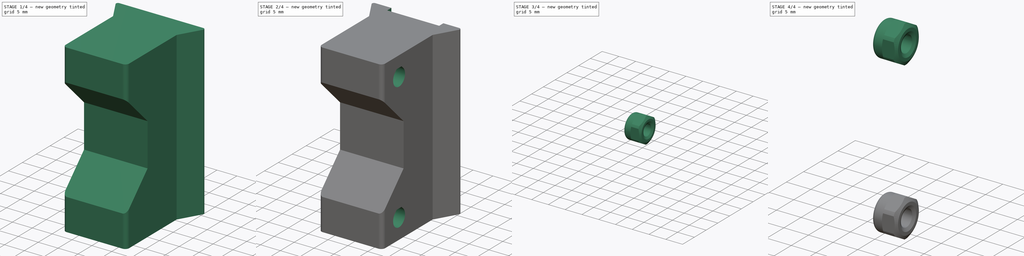
[diagram: build sequence overview — one tinted view per stage of 4, left to right]
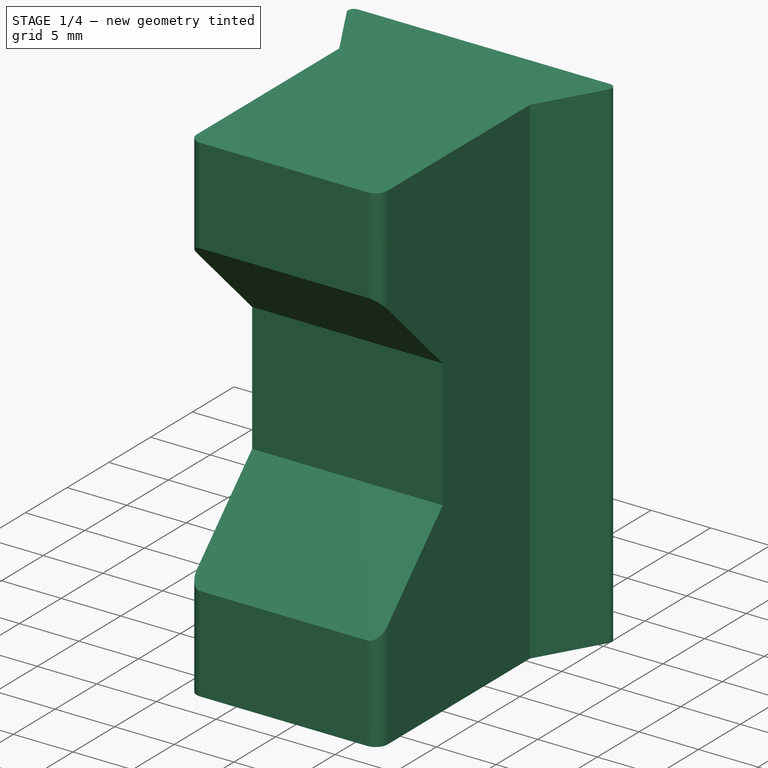
[diagram: stage 1 of 4 — iso view after this stage's code; geometry added in this stage tinted green]
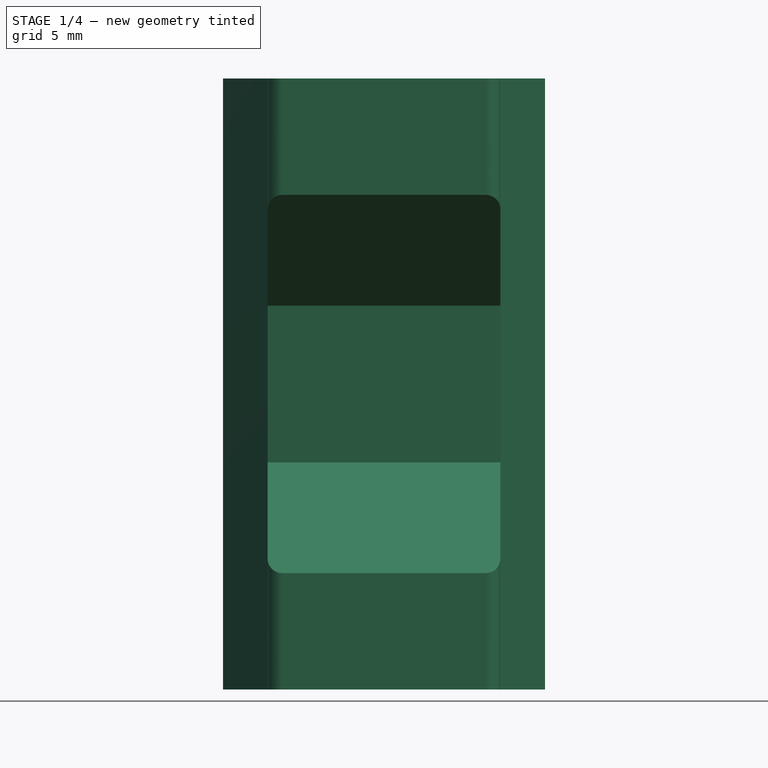
[diagram: stage 1 of 4 — front view after this stage's code; geometry added in this stage tinted green]
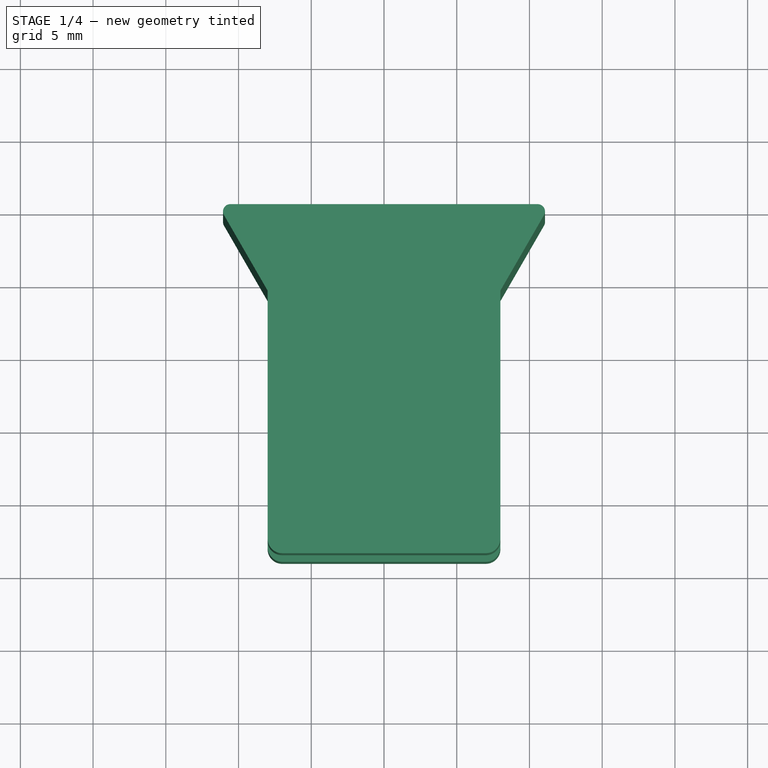
[diagram: stage 1 of 4 — top view after this stage's code; geometry added in this stage tinted green]
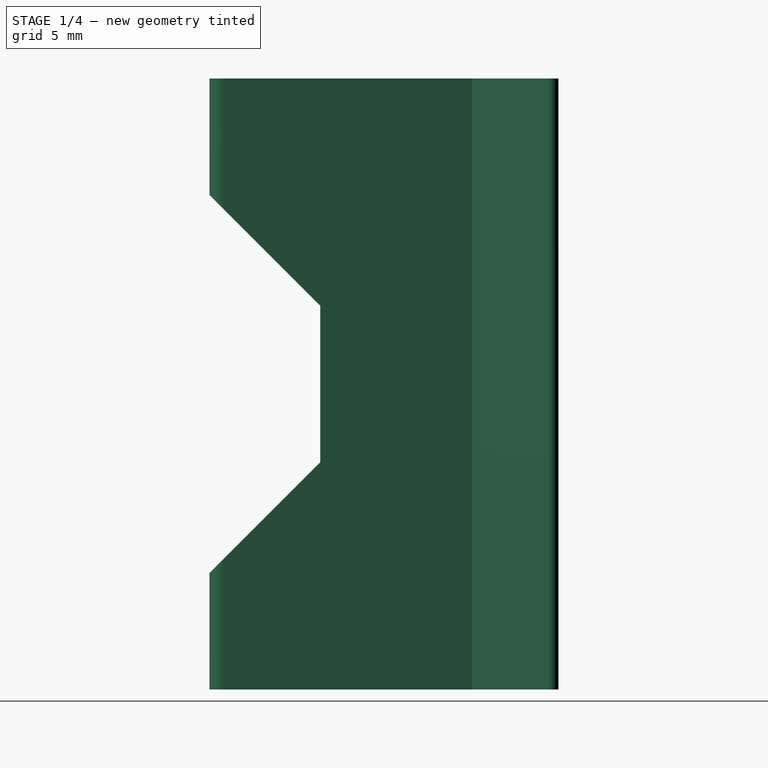
[diagram: stage 1 of 4 — right view after this stage's code; geometry added in this stage tinted green]
FCSTD DOCUMENT  (FreeCAD 0.20R29177 +426 (Git))
Label: BreakawayHeadBase
License: All rights reserved
LicenseURL: http://en.wikipedia.org/wiki/All_rights_reserved
objects: Sketcher::SketchObject×5, App::DocumentObjectGroup×4, PartDesign::Pocket×4, Part::FeaturePython×4, PartDesign::CoordinateSystem×2, App::Link×2, App::FeaturePython×1, PartDesign::Pad×1, PartDesign::Body×1, App::Part×1
note: 22 computed .brp shape members not serialized (recipe doc carries the construction recipe); baked Part::Feature solids carry a one-line shape summary decoded from their .brp
EXTERNAL_REF file=EndStopTip.FCStd obj=Sketch003
EXTERNAL_REF file=EndStopTip.FCStd obj=Sketch
EXTERNAL_REF file=BreakawayMagnet.FCStd obj=LCS_Origin
EXTERNAL_REF file=BreakawayMagnet.FCStd obj=Assembly

FEATURE [App::Part] Assembly
  AssemblyType = Part::Link
  Group = -> [LCS_Origin,Variables,Constraints,Configurations,Body,Screw]
  Origin = -> Origin
  Type = Assembly
---- part EndStopTip.FCStd = doc fcstd_322e3f0e3d58 ----
FCSTD DOCUMENT  (FreeCAD 0.20R29177 +426 (Git))
Label: EndStopTip
License: All rights reserved
LicenseURL: http://en.wikipedia.org/wiki/All_rights_reserved
objects: Sketcher::SketchObject×4, App::DocumentObjectGroup×2, PartDesign::Pad×2, PartDesign::Hole×2, PartDesign::Pocket×2, PartDesign::CoordinateSystem×1, App::FeaturePython×1, PartDesign::Body×1, App::Part×1
note: 18 computed .brp shape members not serialized (recipe doc carries the construction recipe); baked Part::Feature solids carry a one-line shape summary decoded from their .brp

FEATURE [PartDesign::CoordinateSystem] LCS_Origin
  AttacherType = Attacher::AttachEngine3D
  MapMode = 2
  Support = -> [X_Axis]
FEATURE [App::FeaturePython] Variables  # WARN: FeaturePython — macro-defined, semantics opaque (R4)
  BaseHeight = 5
  Type = App::PropertyContainer
FEATURE [App::DocumentObjectGroup] Constraints
FEATURE [App::DocumentObjectGroup] Configurations
FEATURE [Sketcher::SketchObject] Sketch
  AttachmentOffset = pos=(0,0,5) rot=(0,0,1;0rad)
  FullyConstrained = true
  MapMode = 5
  Placement = pos=(0,0,5) rot=(0,0,1;0rad)
  Support = -> [XY_Plane001]
  expr: .AttachmentOffset.Base.z = <<Variables>>.BaseHeight
  sketch-geometry (5):
    g0: LineSegment StartX=-20 StartY=-21 StartZ=0 EndX=-20 EndY=21 EndZ=0
    g1: LineSegment StartX=-20 StartY=21 StartZ=0 EndX=20 EndY=21 EndZ=0
    g2: LineSegment StartX=20 StartY=21 StartZ=0 EndX=20 EndY=-21 EndZ=0
    g3: LineSegment StartX=20 StartY=-21 StartZ=0 EndX=-20 EndY=-21 EndZ=0
    g4: GeomPoint X=0 Y=0 Z=0
  constraints (12):
    c: Coincident(g0,g1)
    c: Coincident(g1,g2)
    c: Coincident(g2,g3)
    c: Coincident(g3,g0)
    c: Horizontal(g1)
    c: Horizontal(g3)
    c: Vertical(g0)
    c: Vertical(g2)
    c: Symmetric(g1,g0,g4)
    c: Coincident(g4,g-1)
    c: DistanceX(g3,g3) = 40  'Width'
    c: DistanceY(g2,g2) = 42  'Height'
FEATURE [PartDesign::Pad] Pad
  Direction = (0,0,1)
  Length = 5
  Length2 = 10
  Profile = -> Sketch
  ReferenceAxis = -> Sketch [N_Axis]
  Reversed = true
  Type = 0
  expr: Length = <<Variables>>.BaseHeight
FEATURE [Sketcher::SketchObject] Sketch001
  AttachmentOffset = pos=(0,0,5) rot=(0,0,1;0rad)
  FullyConstrained = true
  MapMode = 5
  Placement = pos=(0,0,5) rot=(0,0,1;0rad)
  Support = -> [XY_Plane001]
  expr: .AttachmentOffset.Base.z = <<Variables>>.BaseHeight
  sketch-geometry (2):
    g0: Circle CenterX=0 CenterY=10 CenterZ=0 NormalX=0 NormalY=0 NormalZ=1 AngleXU=0 Radius=1
    g1: Circle CenterX=0 CenterY=-10 CenterZ=0 NormalX=0 NormalY=0 NormalZ=1 AngleXU=0 Radius=1
  constraints (5):
    c: PointOnObject(g0,g-2)
    c: Equal(g0,g1)
    c: Diameter(g0) = 2
    c: Symmetric(g1,g0,g-1)
    c: DistanceY(g1,g0) = 20
FEATURE [PartDesign::Hole] Hole  label="MountHoles"
  BaseFeature = -> Pad
  CustomThreadClearance = 0
  Depth = 25
  DepthType = 0
  Diameter = 5.5
  DrillForDepth = false
  DrillPoint = 1
  DrillPointAngle = 118
  HoleCutCountersinkAngle = 90
  HoleCutCustomValues = false
  HoleCutDepth = 0
  HoleCutDiameter = 12.2
  HoleCutType = 0
  ModelThread = false
  Profile = -> Sketch001
  Tapered = false
  TaperedAngle = 90
  ThreadClass = 0
  ThreadDepth = 25
  ThreadDepthType = 0
  ThreadDirection = 0
  ThreadFit = 0
  ThreadSize = 13
  ThreadType = 1
  Threaded = false
  UseCustomThreadClearance = false
FEATURE [PartDesign::Pad] Pad001  label="MagnetPad"
  BaseFeature = -> Hole
  Direction = (0,0,1)
  Length = 5
  Length2 = 10
  Profile = -> Sketch
  ReferenceAxis = -> Sketch [N_Axis]
  Type = 0
FEATURE [PartDesign::Hole] Hole001  label="MagnetHoles"
  BaseFeature = -> Pad001
  CustomThreadClearance = 0
  Depth = 25
  DepthType = 0
  Diameter = 18.6
  DrillForDepth = false
  DrillPoint = 1
  DrillPointAngle = 118
  HoleCutCountersinkAngle = 90
  HoleCutCustomValues = false
  HoleCutDepth = 0
  HoleCutDiameter = 0
  HoleCutType = 0
  ModelThread = false
  Profile = -> Sketch001
  Reversed = true
  Tapered = false
  TaperedAngle = 90
  ThreadClass = 0
  ThreadDepth = 25
  ThreadDepthType = 0
  ThreadDirection = 0
  ThreadFit = 0
  ThreadSize = 0
  ThreadType = 0
  Threaded = false
  UseCustomThreadClearance = false
FEATURE [Sketcher::SketchObject] Sketch002
  FullyConstrained = true
  MapMode = 5
  Support = -> [XY_Plane001]
  expr: Constraints[21] = <<Sketch>>.Constraints.Height
  expr: Constraints[22] = <<Sketch>>.Constraints.Width
  sketch-geometry (15):
    g0: ArcOfCircle CenterX=-17 CenterY=18 CenterZ=0 NormalX=0 NormalY=0 NormalZ=1 AngleXU=0 Radius=3 StartAngle=1.5708 EndAngle=3.14159
    g1: LineSegment StartX=-17 StartY=21 StartZ=0 EndX=17 EndY=21 EndZ=0
    g2: ArcOfCircle CenterX=17 CenterY=18 CenterZ=0 NormalX=0 NormalY=0 NormalZ=1 AngleXU=0 Radius=3 StartAngle=3e-16 EndAngle=1.5708
    g3: LineSegment StartX=20 StartY=18 StartZ=0 EndX=20 EndY=-18 EndZ=0
    g4: ArcOfCircle CenterX=17 CenterY=-18 CenterZ=0 NormalX=0 NormalY=0 NormalZ=1 AngleXU=0 Radius=3 StartAngle=4.71239 EndAngle=6.28319
    g5: LineSegment StartX=17 StartY=-21 StartZ=0 EndX=-17 EndY=-21 EndZ=0
    g6: ArcOfCircle CenterX=-17 CenterY=-18 CenterZ=0 NormalX=0 NormalY=0 NormalZ=1 AngleXU=0 Radius=3 StartAngle=3.14159 EndAngle=4.71239
    g7: LineSegment StartX=-20 StartY=-18 StartZ=0 EndX=-20 EndY=18 EndZ=0
    g8: GeomPoint X=-20 Y=21 Z=0
    g9: GeomPoint X=20 Y=-21 Z=0
    g10: LineSegment StartX=-41 StartY=-41 StartZ=0 EndX=-41 EndY=41 EndZ=0
    g11: LineSegment StartX=-41 StartY=41 StartZ=0 EndX=41 EndY=41 EndZ=0
    g12: LineSegment StartX=41 StartY=41 StartZ=0 EndX=41 EndY=-41 EndZ=0
    g13: LineSegment StartX=41 StartY=-41 StartZ=0 EndX=-41 EndY=-41 EndZ=0
    g14: GeomPoint X=0 Y=0 Z=0
  constraints (35):
    c: Tangent(g0,g1) = 1.5708
    c: Tangent(g1,g2) = 1.5708
    c: Tangent(g2,g3) = 1.5708
    c: Tangent(g3,g4) = 1.5708
    c: Tangent(g4,g5) = 1.5708
    c: Tangent(g5,g6) = 1.5708
    c: Tangent(g6,g7) = 1.5708
    c: Tangent(g7,g0) = 1.5708
    c: Horizontal(g1)
    c: Horizontal(g5)
    c: Vertical(g3)
    c: Vertical(g7)
    c: Equal(g0,g2)
    c: Equal(g2,g4)
    c: Equal(g4,g6)
    c: PointOnObject(g8,g1)
    c: PointOnObject(g8,g7)
    c: PointOnObject(g9,g3)
    c: PointOnObject(g9,g5)
    c: Symmetric(g4,g0,g-1)
    c: Radius(g4) = 3
    c: DistanceY(g4,g1) = 42
    c: DistanceX(g0,g2) = 40
    c: Coincident(g10,g11)
    c: Coincident(g11,g12)
    c: Coincident(g12,g13)
    c: Coincident(g13,g10)
    c: Horizontal(g11)
    c: Horizontal(g13)
    c: Vertical(g10)
    c: Vertical(g12)
    c: Symmetric(g11,g10,g14)
    c: Coincident(g14,g-1)
    c: Equal(g12,g11)
    c: DistanceY(g1,g11) = 20
FEATURE [PartDesign::Pocket] Pocket  label="CornerFillets"
  BaseFeature = -> Hole001
  Direction = (0,0,-1)
  Length = 5
  Length2 = 5
  Midplane = true
  Profile = -> Sketch002
  ReferenceAxis = -> Sketch002 [N_Axis]
  Type = 1
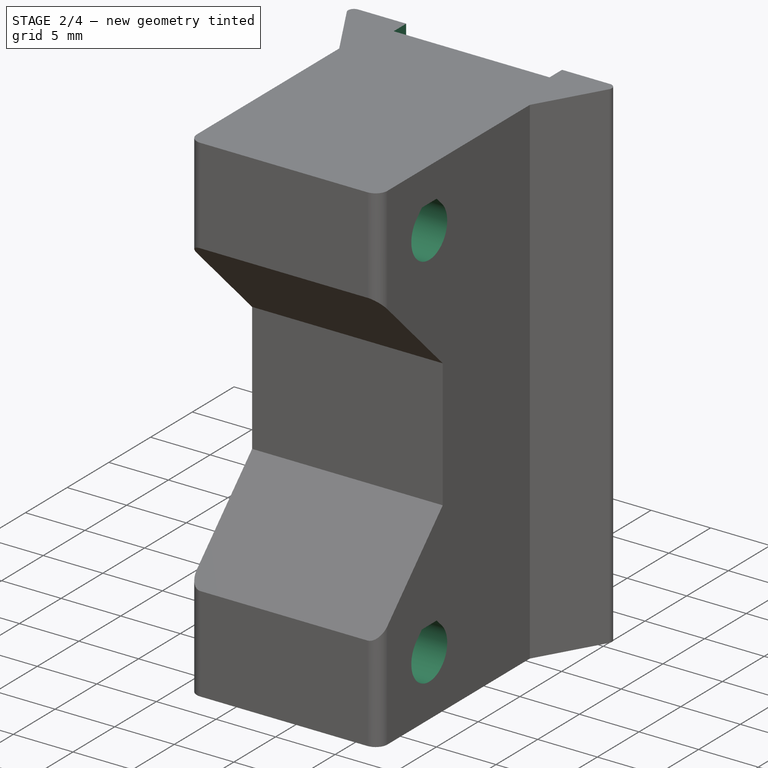
[diagram: stage 2 of 4 — iso view after this stage's code; geometry added in this stage tinted green]
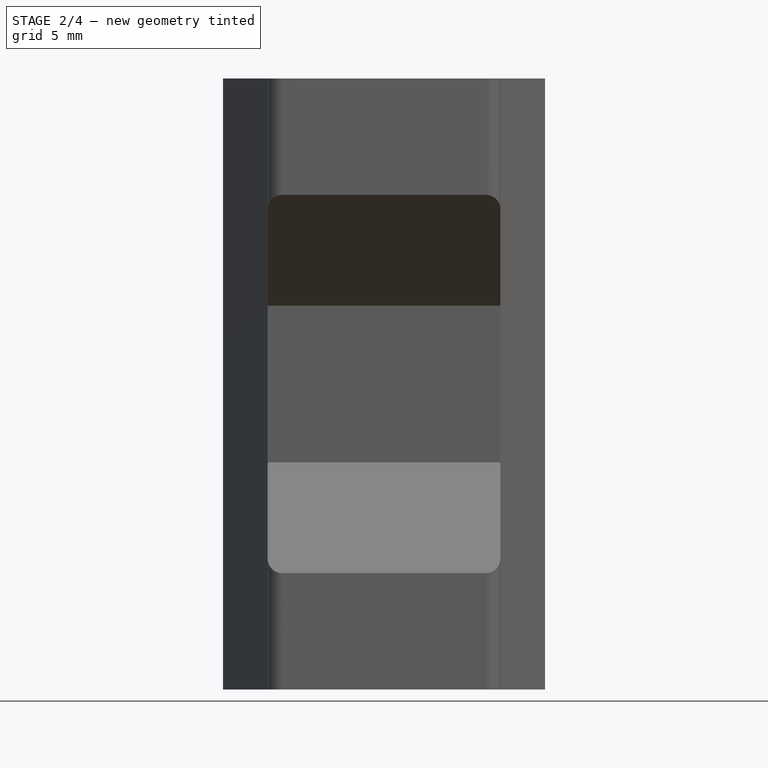
[diagram: stage 2 of 4 — front view after this stage's code; geometry added in this stage tinted green]
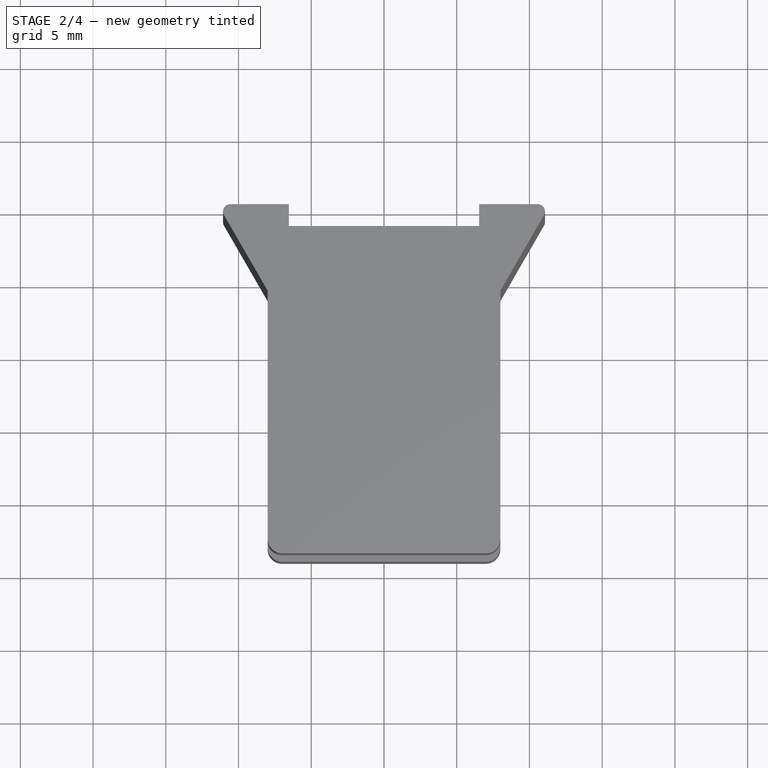
[diagram: stage 2 of 4 — top view after this stage's code; geometry added in this stage tinted green]
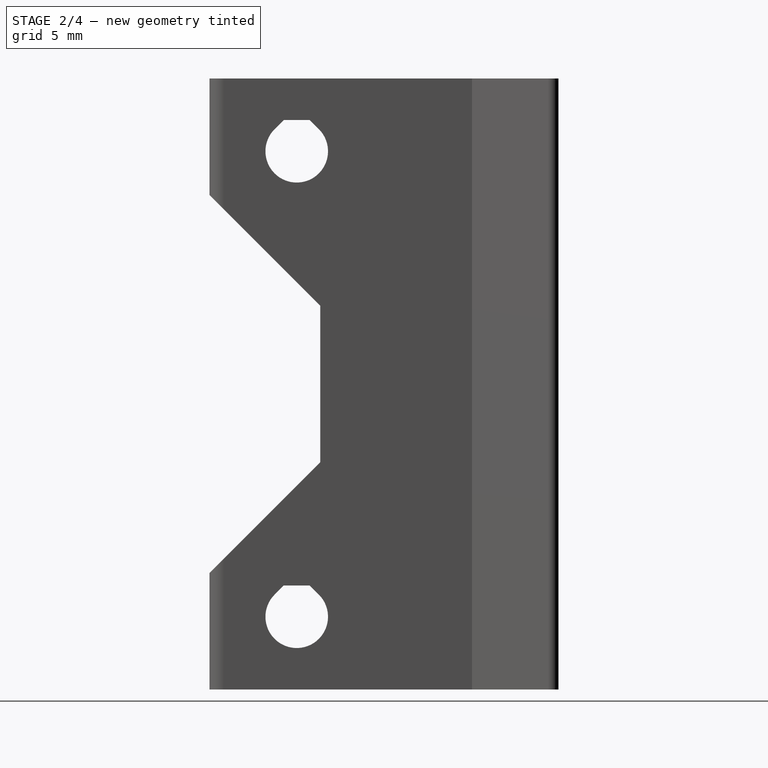
[diagram: stage 2 of 4 — right view after this stage's code; geometry added in this stage tinted green]
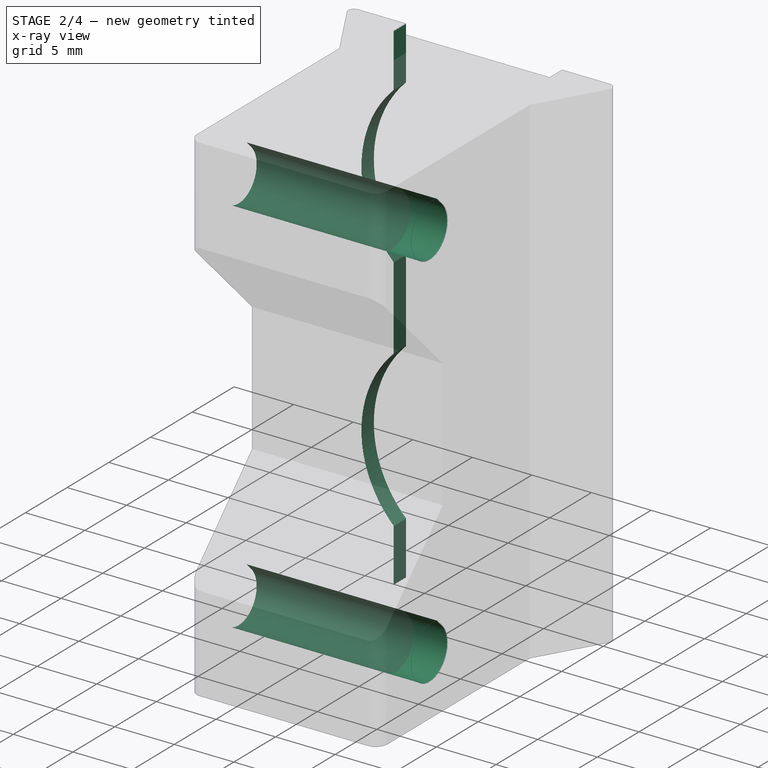
[diagram: stage 2 of 4 — x-ray composite at the iso view; earlier geometry ghosted, this stage's added geometry solid]
FEATURE [App::DocumentObjectGroup] Parts
FEATURE [PartDesign::CoordinateSystem] LCS_Origin
  AttacherType = Attacher::AttachEngine3D
  MapMode = 2
  Support = -> [X_Axis]
FEATURE [App::FeaturePython] Variables  # WARN: FeaturePython — macro-defined, semantics opaque (R4)
  Type = App::PropertyContainer
FEATURE [App::DocumentObjectGroup] Constraints
FEATURE [App::DocumentObjectGroup] Configurations
FEATURE [Sketcher::SketchObject] Sketch
  FullyConstrained = true
  MapMode = 5
  Support = -> [XY_Plane001]
  expr: Constraints[9] = <<EndStopTip>>#<<SketchChamfer>>.Constraints.MateWidth
  sketch-geometry (14):
    g0: ArcOfCircle CenterX=-10.567 CenterY=-0.5 CenterZ=0 NormalX=0 NormalY=0 NormalZ=1 AngleXU=0 Radius=0.5 StartAngle=1.5708 EndAngle=3.66519
    g1: LineSegment StartX=-10.567 StartY=0 StartZ=0 EndX=10.567 EndY=0 EndZ=0
    g2: ArcOfCircle CenterX=10.567 CenterY=-0.5 CenterZ=0 NormalX=0 NormalY=0 NormalZ=1 AngleXU=0 Radius=0.5 StartAngle=5.75959 EndAngle=7.85398
    g3: LineSegment StartX=11 StartY=-0.75 StartZ=0 EndX=8 EndY=-5.94615 EndZ=0
    g4: LineSegment StartX=-8 StartY=-5.94615 StartZ=0 EndX=-11 EndY=-0.75 EndZ=0
    g5: GeomPoint X=-11.433 Y=0 Z=0
    g6: LineSegment StartX=-8 StartY=-5.94615 StartZ=0 EndX=-8 EndY=-23 EndZ=0
    g7: LineSegment StartX=-7 StartY=-24 StartZ=0 EndX=7 EndY=-24 EndZ=0
    g8: LineSegment StartX=8 StartY=-23 StartZ=0 EndX=8 EndY=-5.94615 EndZ=0
    g9: GeomPoint X=0 Y=-24 Z=0
    g10: ArcOfCircle CenterX=7 CenterY=-23 CenterZ=0 NormalX=0 NormalY=0 NormalZ=1 AngleXU=0 Radius=1 StartAngle=4.71239 EndAngle=6.28319
    g11: GeomPoint X=8 Y=-24 Z=0
    g12: ArcOfCircle CenterX=-7 CenterY=-23 CenterZ=0 NormalX=0 NormalY=0 NormalZ=1 AngleXU=0 Radius=1 StartAngle=3.14159 EndAngle=4.71239
    g13: GeomPoint X=-8 Y=-24 Z=0
  constraints (32):
    c: Tangent(g0,g1) = 1.5708
    c: Tangent(g1,g2) = 1.5708
    c: Tangent(g2,g3) = 1.5708
    c: Tangent(g4,g0) = 1.5708
    c: Horizontal(g1)
    c: Equal(g0,g2)
    c: PointOnObject(g5,g1)
    c: PointOnObject(g5,g4)
    c: Radius(g0) = 0.5
    c: DistanceX(g0,g2) = 22
    c: Symmetric(g1,g0,g-1)
    c: Vertical(g6)
    c: Horizontal(g7)
    c: Vertical(g8)
    c: Symmetric(g13,g11,g9)
    c: PointOnObject(g9,g-2)
    c: Coincident(g4,g6)
    c: Coincident(g8,g3)
    c: Equal(g4,g3)
    c: Angle(g1,g3) = 1.0472
    c: DistanceX(g13,g11) = 16  'EndWidth'
    c: DistanceY(g11,g-1) = 24  'Length'
    c: PointOnObject(g11,g8)
    c: PointOnObject(g11,g7)
    c: Tangent(g8,g10) = -1.5708
    c: Tangent(g7,g10) = -1.5708
    c: PointOnObject(g13,g7)
    c: PointOnObject(g13,g6)
    c: Tangent(g7,g12) = -1.5708
    c: Tangent(g6,g12) = -1.5708
    c: Equal(g12,g10)
    c: Radius(g10) = 1
FEATURE [PartDesign::Pad] Pad
  Direction = (0,0,1)
  Length = 42
  Length2 = 10
  Midplane = true
  Profile = -> Sketch
  ReferenceAxis = -> Sketch [N_Axis]
  Type = 0
  expr: Length = <<EndStopTip>>#<<Sketch>>.Constraints.Height
FEATURE [Sketcher::SketchObject] Sketch001
  FullyConstrained = true
  MapMode = 5
  Placement = pos=(0,0,0) rot=(0.57735,0.57735,0.57735;2.0944rad)
  Support = -> [YZ_Plane001]
  expr: Constraints[25] = <<Sketch>>.Constraints.Length
  sketch-geometry (9):
    g0: LineSegment StartX=-24 StartY=13 StartZ=0 EndX=-34.7696 EndY=13 EndZ=0
    g1: LineSegment StartX=-34.7696 StartY=13 StartZ=0 EndX=-42.3848 EndY=5.38478 EndZ=0
    g2: LineSegment StartX=-42.3848 StartY=5.38478 StartZ=0 EndX=-42.3848 EndY=-5.38478 EndZ=0
    g3: LineSegment StartX=-42.3848 StartY=-5.38478 StartZ=0 EndX=-34.7696 EndY=-13 EndZ=0
    g4: LineSegment StartX=-34.7696 StartY=-13 StartZ=0 EndX=-24 EndY=-13 EndZ=0
    g5: LineSegment StartX=-24 StartY=-13 StartZ=0 EndX=-16.3848 EndY=-5.38478 EndZ=0
    g6: LineSegment StartX=-16.3848 StartY=-5.38478 StartZ=0 EndX=-16.3848 EndY=5.38478 EndZ=0
    g7: LineSegment StartX=-16.3848 StartY=5.38478 StartZ=0 EndX=-24 EndY=13 EndZ=0
    g8: Circle CenterX=-29.3848 CenterY=0 CenterZ=0 NormalX=0 NormalY=0 NormalZ=1 AngleXU=0 Radius=14.0711
  constraints (21):
    c: Coincident(g0,g1)
    c: Coincident(g1,g2)
    c: Coincident(g2,g3)
    c: Coincident(g3,g4)
    c: Coincident(g4,g5)
    c: Coincident(g5,g6)
    c: Coincident(g6,g7)
    c: Coincident(g7,g0)
    c: Equal(g0, g1-g7) x7
    c: PointOnObject(g0,g8)
    c: PointOnObject(g1,g8)
    c: PointOnObject(g2,g8)
    c: PointOnObject(g3,g8)
    c: PointOnObject(g4,g8)
    c: PointOnObject(g5,g8)
    c: PointOnObject(g6,g8)
    c: PointOnObject(g7,g8)
    c: PointOnObject(g8,g-1)
    c: Horizontal(g0)
    c: DistanceX(g4,g-1) = 24
    c: DistanceY(g3,g0) = 26
FEATURE [PartDesign::Pocket] Pocket  label="Cutout"
  BaseFeature = -> Pad
  Direction = (-1,2e-16,-3e-16)
  Length = 5
  Length2 = 5
  Midplane = true
  Profile = -> Sketch001
  ReferenceAxis = -> Sketch001 [N_Axis]
  Type = 1
FEATURE [Sketcher::SketchObject] Sketch002
  FullyConstrained = true
  MapMode = 5
  Placement = pos=(0,0,0) rot=(0.57735,0.57735,0.57735;2.0944rad)
  Support = -> [YZ_Plane001]
  expr: .Constraints.HolesOffset = <<Sketch>>.Constraints.Length - 6mm
  expr: .Constraints.TrussHoleSpacing = <<Pad>>.Length - 10mm
  sketch-geometry (12):
    g0: LineSegment StartX=-18 StartY=16 StartZ=0 EndX=-18 EndY=-16 EndZ=0
    g1: GeomPoint X=-18 Y=0 Z=0
    g2: ArcOfCircle CenterX=-18 CenterY=16 CenterZ=0 NormalX=0 NormalY=0 NormalZ=1 AngleXU=0 Radius=2.15 StartAngle=2.35619 EndAngle=7.06858
    g3: LineSegment StartX=-19.5203 StartY=17.5203 StartZ=0 EndX=-18.8906 EndY=18.15 EndZ=0
    g4: LineSegment StartX=-16.4797 StartY=17.5203 StartZ=0 EndX=-17.1094 EndY=18.15 EndZ=0
    g5: LineSegment StartX=-17.1094 StartY=18.15 StartZ=0 EndX=-18.8906 EndY=18.15 EndZ=0
    g6: ArcOfCircle CenterX=-18 CenterY=16 CenterZ=0 NormalX=0 NormalY=0 NormalZ=1 AngleXU=0 Radius=2.15 StartAngle=0.785398 EndAngle=2.35619
    g7: ArcOfCircle CenterX=-18 CenterY=-16 CenterZ=0 NormalX=0 NormalY=0 NormalZ=1 AngleXU=0 Radius=2.15 StartAngle=2.35619 EndAngle=7.06858
    g8: LineSegment StartX=-19.5203 StartY=-14.4797 StartZ=0 EndX=-18.8906 EndY=-13.85 EndZ=0
    g9: LineSegment StartX=-16.4797 StartY=-14.4797 StartZ=0 EndX=-17.1094 EndY=-13.85 EndZ=0
    g10: LineSegment StartX=-17.1094 StartY=-13.85 StartZ=0 EndX=-18.8906 EndY=-13.85 EndZ=0
    g11: ArcOfCircle CenterX=-18 CenterY=-16 CenterZ=0 NormalX=0 NormalY=0 NormalZ=1 AngleXU=0 Radius=2.15 StartAngle=0.785398 EndAngle=2.35619
  constraints (31):
    c: Vertical(g0)
    c: PointOnObject(g1,g-1)
    c: DistanceY(g0,g0) = 32  'TrussHoleSpacing'
    c: DistanceX(g1,g-1) = 18  'HolesOffset'
    c: Coincident(g2,g0)
    c: Symmetric(g2,g0,g1)
    c: Coincident(g5,g4)
    c: Coincident(g5,g3)
    c: Horizontal(g5)
    c: Tangent(g4,g2) = -1.5708
    c: Tangent(g3,g2) = 1.5708
    c: Diameter(g2) = 4.3
    c: Coincident(g6,g2)
    c: Coincident(g6,g2)
    c: Coincident(g6,g2)
    c: Tangent(g5,g6)
    c: Equal(g4,g3)
    c: Angle(g5,g4) = 2.35619
    c: Coincident(g10,g9)
    c: Coincident(g10,g8)
    c: Horizontal(g10)
    c: Tangent(g9,g7) = -1.5708
    c: Tangent(g8,g7) = 1.5708
    c: Equal(g2,g7) = 5.4
    c: Coincident(g11,g7)
    c: Coincident(g11,g7)
    c: Coincident(g11,g7)
    c: Tangent(g10,g11)
    c: Equal(g9,g8)
    c: Angle(g10,g9) = 2.35619
    c: Coincident(g7,g0)
FEATURE [PartDesign::Pocket] Pocket001  label="TrussHoles"
  BaseFeature = -> Pocket
  Direction = (-1,2e-16,-3e-16)
  Length = 5
  Length2 = 5
  Midplane = true
  Profile = -> Sketch002
  ReferenceAxis = -> Sketch002 [N_Axis]
  Type = 1
FEATURE [Sketcher::SketchObject] Sketch003
  FullyConstrained = true
  MapMode = 5
  Placement = pos=(0,0,0) rot=(1,0,0;1.5708rad)
  Support = -> [XZ_Plane001]
  sketch-geometry (13):
    g0: ArcOfCircle CenterX=0 CenterY=10 CenterZ=0 NormalX=0 NormalY=0 NormalZ=1 AngleXU=0 Radius=9.25 StartAngle=2.35619 EndAngle=3.92699
    g1: ArcOfCircle CenterX=0 CenterY=10 CenterZ=0 NormalX=0 NormalY=0 NormalZ=1 AngleXU=0 Radius=9.25 StartAngle=5.49779 EndAngle=7.06858
    g2: ArcOfCircle CenterX=-9e-16 CenterY=-10 CenterZ=0 NormalX=0 NormalY=0 NormalZ=1 AngleXU=0 Radius=9.25 StartAngle=5.49779 EndAngle=7.06858
    g3: ArcOfCircle CenterX=-9e-16 CenterY=-10 CenterZ=0 NormalX=0 NormalY=0 NormalZ=1 AngleXU=0 Radius=9.25 StartAngle=2.35619 EndAngle=3.92699
    g4: LineSegment StartX=-6.54074 StartY=3.45926 StartZ=0 EndX=-6.54074 EndY=-3.45926 EndZ=0
    g5: LineSegment StartX=6.54074 StartY=3.45926 StartZ=0 EndX=6.54074 EndY=-3.45926 EndZ=0
    g6: LineSegment StartX=6.54074 StartY=-16.5407 StartZ=0 EndX=6.54074 EndY=-22.5407 EndZ=0
    g7: LineSegment StartX=6.54074 StartY=-22.5407 StartZ=0 EndX=-6.54074 EndY=-22.5407 EndZ=0
    g8: LineSegment StartX=-6.54074 StartY=-22.5407 StartZ=0 EndX=-6.54074 EndY=-16.5407 EndZ=0
    g9: LineSegment StartX=-6.54074 StartY=16.5407 StartZ=0 EndX=-6.54074 EndY=22.5407 EndZ=0
    g10: LineSegment StartX=-6.54074 StartY=22.5407 StartZ=0 EndX=6.54074 EndY=22.5407 EndZ=0
    g11: LineSegment StartX=6.54074 StartY=22.5407 StartZ=0 EndX=6.54074 EndY=16.5407 EndZ=0
    g12: LineSegment StartX=-6.54074 StartY=-3.45926 StartZ=0 EndX=-3.08148 EndY=0 EndZ=0
  constraints (39):
    c: PointOnObject(g1,g-2)
    c: Symmetric(g1,g3,g-1)
    c: DistanceY(g3,g1) = 20
    c: Coincident(g1,g0)
    c: Diameter(g1) = 18.5
    c: Coincident(g3,g2)
    c: Coincident(g4,g0)
    c: Coincident(g4,g3)
    c: Coincident(g5,g1)
    c: Coincident(g5,g2)
    c: Coincident(g6,g2)
    c: Vertical(g6)
    c: Coincident(g7,g6)
    c: Horizontal(g7)
    c: Coincident(g8,g3)
    c: Vertical(g8)
    c: Coincident(g9,g0)
    c: Vertical(g9)
    c: Coincident(g10,g9)
    c: Horizontal(g10)
    c: Coincident(g11,g10)
    c: Coincident(g11,g1)
    c: Vertical(g11)
    c: Vertical(g5)
    c: Vertical(g4)
    c: Equal(g0,g1)
    c: Equal(g2,g3)
    c: Equal(g2,g1)
    c: Equal(g6,g8)
    c: Coincident(g8,g7)
    c: Equal(g9,g11)
    c: Equal(g10,g7)
    c: PointOnObject(g2,g6)
    c: PointOnObject(g3,g8)
    c: PointOnObject(g12,g-1)
    c: Tangent(g12,g3) = 1.5708
    c: Angle(g12,g-1) = 2.35619
    c: DistanceY(g11,g11) = 6
    c: Equal(g6,g11)
FEATURE [PartDesign::Pocket] Pocket002  label="MagnetHoles"
  BaseFeature = -> Pocket001
  Direction = (0,1,2e-16)
  Length = 1.5
  Length2 = 5
  Profile = -> Sketch003
  ReferenceAxis = -> Sketch003 [N_Axis]
  Reversed = true
  Type = 0
FEATURE [Sketcher::SketchObject] Sketch003  label="SketchChamfer"
  FullyConstrained = true
  MapMode = 5
  Placement = pos=(0,0,0) rot=(1,0,0;1.5708rad)
  Support = -> [XZ_Plane001]
  expr: Constraints[26] = <<Pad>>.Length + <<MagnetPad>>.Length
  expr: Constraints[9] = <<Sketch>>.Constraints.Width
  sketch-geometry (10):
    g0: LineSegment StartX=11 StartY=10 StartZ=0 EndX=20 EndY=2 EndZ=0
    g1: LineSegment StartX=20 StartY=2 StartZ=0 EndX=-20 EndY=2 EndZ=0
    g2: LineSegment StartX=-20 StartY=2 StartZ=0 EndX=-11 EndY=10 EndZ=0
    g3: LineSegment StartX=-11 StartY=10 StartZ=0 EndX=11 EndY=10 EndZ=0
    g4: GeomPoint X=0 Y=2 Z=0
    g5: LineSegment StartX=-20 StartY=2 StartZ=0 EndX=-21 EndY=2 EndZ=0
    g6: LineSegment StartX=-21 StartY=2 StartZ=0 EndX=-21 EndY=11 EndZ=0
    g7: LineSegment StartX=-21 StartY=11 StartZ=0 EndX=21 EndY=11 EndZ=0
    g8: LineSegment StartX=21 StartY=11 StartZ=0 EndX=21 EndY=2 EndZ=0
    g9: LineSegment StartX=21 StartY=2 StartZ=0 EndX=20 EndY=2 EndZ=0
  constraints (27):
    c: Coincident(g0,g1)
    c: Coincident(g1,g2)
    c: Coincident(g2,g3)
    c: Coincident(g3,g0)
    c: Horizontal(g1)
    c: Horizontal(g3)
    c: PointOnObject(g4,g-2)
    c: Equal(g0,g2)
    c: Symmetric(g0,g1,g4)
    c: DistanceX(g1,g1) = 40
    c: DistanceX(g3,g3) = 22  'MateWidth'
    c: DistanceY(g-1,g4) = 2
    c: Coincident(g5,g2)
    c: Horizontal(g5)
    c: Coincident(g6,g5)
    c: Vertical(g6)
    c: Coincident(g6,g7)
    c: Horizontal(g7)
    c: Coincident(g7,g8)
    c: Vertical(g8)
    c: Coincident(g8,g9)
    c: Coincident(g9,g0)
    c: Horizontal(g9)
    c: Equal(g9,g5)
    c: DistanceX(g9,g9) = 1
    c: DistanceY(g0,g7) = 1
    c: DistanceY(g-1,g0) = 10
FEATURE [PartDesign::Pocket] Pocket001  label="Chamfer"
  BaseFeature = -> Pocket
  Direction = (0,1,2e-16)
  Length = 5
  Length2 = 5
  Midplane = true
  Profile = -> Sketch003
  ReferenceAxis = -> Sketch003 [N_Axis]
  Type = 1
FEATURE [PartDesign::Body] Body
  Group = -> [Sketch,Pad,Sketch001,Hole,Pad001,Hole001,Sketch002,Pocket,Sketch003,Pocket001]
  Origin = -> Origin001
  Tip = -> Pocket001
FEATURE [App::Part] Assembly
  AssemblyType = Part::Link
  Group = -> [LCS_Origin,Variables,Constraints,Configurations,Body]
  Origin = -> Origin
  Type = Assembly
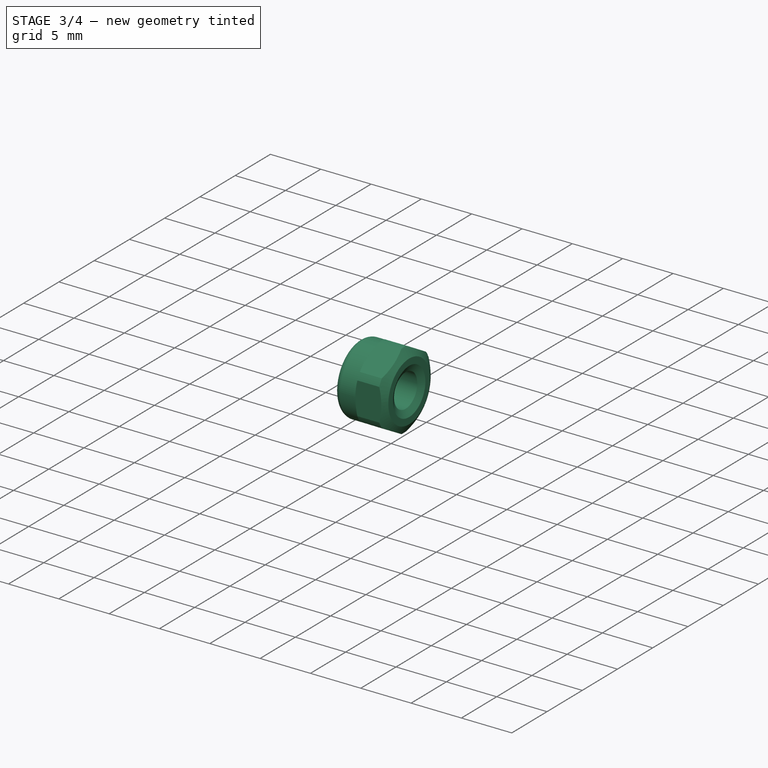
[diagram: stage 3 of 4 — iso view after this stage's code; geometry added in this stage tinted green]
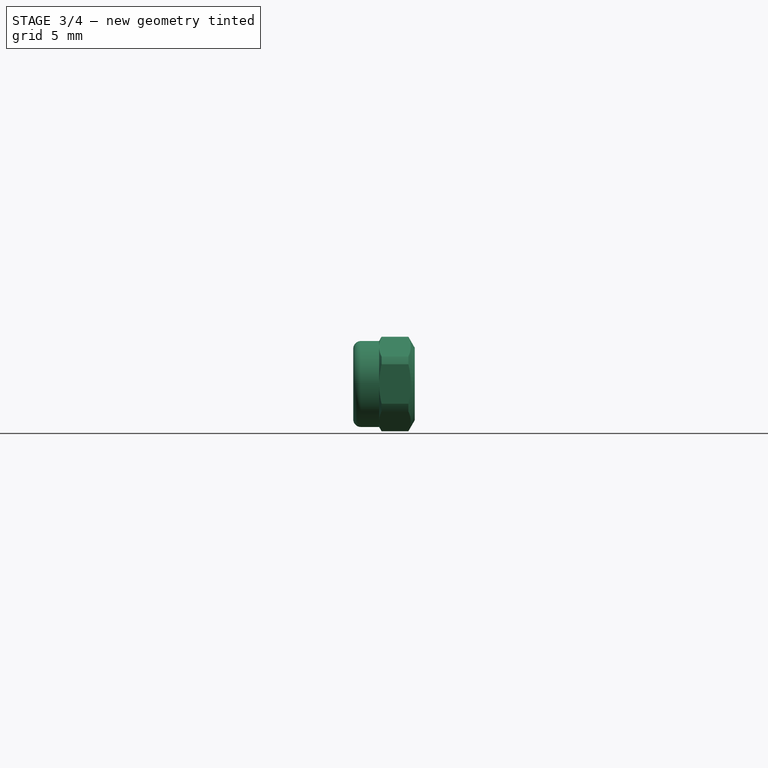
[diagram: stage 3 of 4 — front view after this stage's code; geometry added in this stage tinted green]
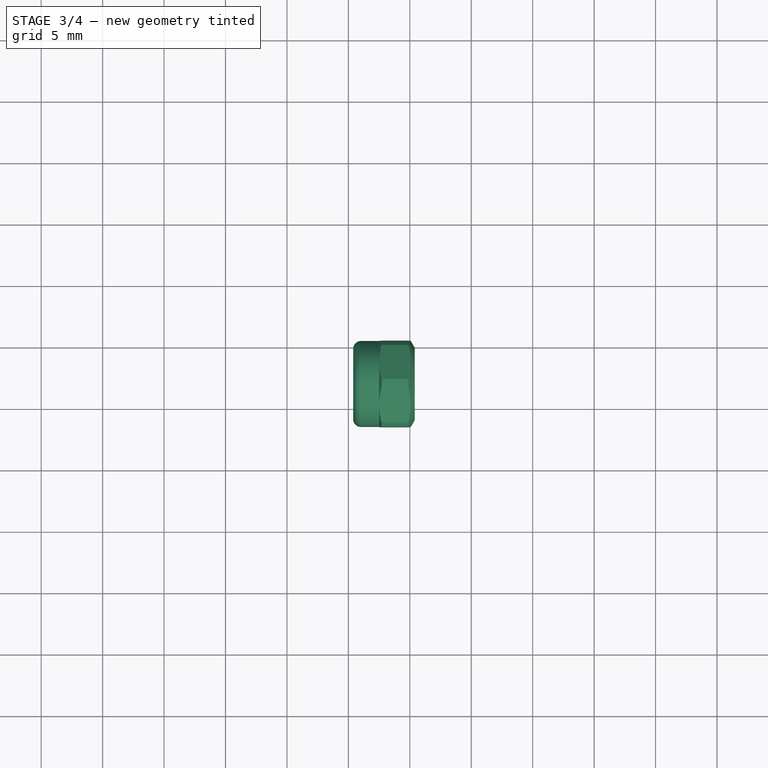
[diagram: stage 3 of 4 — top view after this stage's code; geometry added in this stage tinted green]
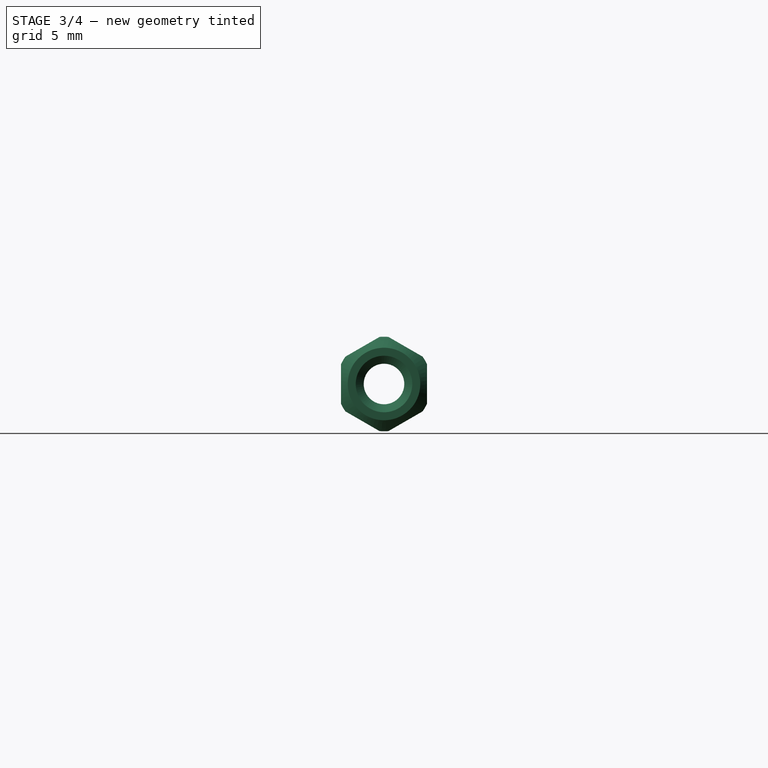
[diagram: stage 3 of 4 — right view after this stage's code; geometry added in this stage tinted green]
FEATURE [Sketcher::SketchObject] Sketch004
  FullyConstrained = true
  MapMode = 5
  Placement = pos=(0,0,0) rot=(1,0,0;1.5708rad)
  Support = -> [XZ_Plane001]
  sketch-geometry (8):
    g0: ArcOfCircle CenterX=0 CenterY=10 CenterZ=0 NormalX=0 NormalY=0 NormalZ=1 AngleXU=0 Radius=2.25 StartAngle=2.35619 EndAngle=7.06858
    g1: LineSegment StartX=-1.59099 StartY=11.591 StartZ=0 EndX=-0.931981 EndY=12.25 EndZ=0
    g2: LineSegment StartX=-0.931981 StartY=12.25 StartZ=0 EndX=0.931981 EndY=12.25 EndZ=0
    g3: LineSegment StartX=0.931981 StartY=12.25 StartZ=0 EndX=1.59099 EndY=11.591 EndZ=0
    g4: ArcOfCircle CenterX=0 CenterY=-10 CenterZ=0 NormalX=0 NormalY=0 NormalZ=1 AngleXU=0 Radius=2.25 StartAngle=2.35619 EndAngle=7.06858
    g5: LineSegment StartX=-1.59099 StartY=-8.40901 StartZ=0 EndX=-0.931981 EndY=-7.75 EndZ=0
    g6: LineSegment StartX=-0.931981 StartY=-7.75 StartZ=0 EndX=0.931981 EndY=-7.75 EndZ=0
    g7: LineSegment StartX=0.931981 StartY=-7.75 StartZ=0 EndX=1.59099 EndY=-8.40901 EndZ=0
  constraints (21):
    c: PointOnObject(g0,g-2)
    c: Coincident(g2,g1)
    c: Horizontal(g2)
    c: Coincident(g3,g2)
    c: Tangent(g3,g0) = 1.5708
    c: Tangent(g1,g0) = 1.5708
    c: Equal(g1,g3)
    c: Angle(g2,g3) = 2.35619
    c: Diameter(g0) = 4.5
    c: Tangent(g2,g0)
    c: Coincident(g6,g5)
    c: Horizontal(g6)
    c: Coincident(g7,g6)
    c: Tangent(g7,g4) = 1.5708
    c: Tangent(g5,g4) = 1.5708
    c: Equal(g5,g7)
    c: Angle(g6,g7) = 2.35619
    c: Equal(g0,g4) = 4.5
    c: Tangent(g6,g4)
    c: Symmetric(g4,g0,g-1)
    c: DistanceY(g4,g0) = 20
FEATURE [PartDesign::Pocket] Pocket003  label="MagnetMountHoles"
  BaseFeature = -> Pocket002
  Direction = (0,1,2e-16)
  Length = 16
  Length2 = 5
  Profile = -> Sketch004
  ReferenceAxis = -> Sketch004 [N_Axis]
  Reversed = true
  Type = 0
FEATURE [Part::FeaturePython] Nut001  label="M4-Nut001"  # Fasteners workbench fastener (typed FeaturePython)
  Placement = pos=(-9.6,-18,-16) rot=(0,-1,0;1.5708rad)
  baseObject = -> Screw [Edge35]
  diameter = 2
  invert = true
  leftHanded = false
  matchOuter = true
  offset = -5
  thread = false
  type = 19
FEATURE [App::DocumentObjectGroup] Fasteners
  Group = -> [Screw,Screw001,Nut,Nut001]
FEATURE [App::Part] Assembly
  AssemblyType = Part::Link
  Group = -> [LCS_Origin,Variables,Constraints,Configurations,Body,BreakawayMagnetTop,BreakawayMagnetTop001,Fasteners,LCS_TrussHoles,Screw,Screw001,Nut,Nut001]
  Origin = -> Origin
  Type = Assembly

RESOLVED EXTERNAL PARTS (link-assembly join: the EXTERNAL_REF files above that resolve inside this repo's crawl, each included once):
---- part BreakawayMagnet.FCStd = doc fcstd_0674e4698032 ----
FCSTD DOCUMENT  (FreeCAD 0.20R29177 +426 (Git))
Label: BreakawayMagnet
License: All rights reserved
LicenseURL: http://en.wikipedia.org/wiki/All_rights_reserved
objects: App::DocumentObjectGroup×3, Sketcher::SketchObject×2, PartDesign::CoordinateSystem×1, App::FeaturePython×1, PartDesign::Revolution×1, PartDesign::Hole×1, PartDesign::Body×1, Part::FeaturePython×1, App::Part×1
note: 9 computed .brp shape members not serialized (recipe doc carries the construction recipe); baked Part::Feature solids carry a one-line shape summary decoded from their .brp

FEATURE [App::DocumentObjectGroup] Parts
FEATURE [PartDesign::CoordinateSystem] LCS_Origin
  AttacherType = Attacher::AttachEngine3D
  MapMode = 2
  Support = -> [X_Axis]
FEATURE [App::FeaturePython] Variables  # WARN: FeaturePython — macro-defined, semantics opaque (R4)
  Type = App::PropertyContainer
FEATURE [App::DocumentObjectGroup] Constraints
FEATURE [App::DocumentObjectGroup] Configurations
FEATURE [Sketcher::SketchObject] Sketch
  FullyConstrained = true
  MapMode = 5
  Placement = pos=(0,0,0) rot=(1,0,0;1.5708rad)
  Support = -> [XZ_Plane001]
  sketch-geometry (8):
    g0: LineSegment StartX=0 StartY=3 StartZ=0 EndX=8.5 EndY=3 EndZ=0
    g1: ArcOfCircle CenterX=8.5 CenterY=2.5 CenterZ=0 NormalX=0 NormalY=0 NormalZ=1 AngleXU=0 Radius=0.5 StartAngle=4.57e-14 EndAngle=1.5708
    g2: LineSegment StartX=9 StartY=2.5 StartZ=0 EndX=9 EndY=0.5 EndZ=0
    g3: ArcOfCircle CenterX=8.5 CenterY=0.5 CenterZ=0 NormalX=0 NormalY=0 NormalZ=1 AngleXU=0 Radius=0.5 StartAngle=4.71239 EndAngle=6.28319
    g4: LineSegment StartX=8.5 StartY=1e-16 StartZ=0 EndX=0 EndY=1e-16 EndZ=0
    g5: LineSegment StartX=0 StartY=1e-16 StartZ=0 EndX=0 EndY=3 EndZ=0
    g6: GeomPoint X=0 Y=3 Z=0
    g7: GeomPoint X=9 Y=0 Z=0
  constraints (19):
    c: Tangent(g0,g1) = 1.5708
    c: Tangent(g1,g2) = 1.5708
    c: Tangent(g2,g3) = 1.5708
    c: Tangent(g3,g4) = 1.5708
    c: Horizontal(g0)
    c: Horizontal(g4)
    c: Vertical(g2)
    c: Vertical(g5)
    c: Equal(g1,g3)
    c: PointOnObject(g6,g0)
    c: PointOnObject(g6,g5)
    c: PointOnObject(g7,g2)
    c: PointOnObject(g7,g4)
    c: Coincident(g5,g4)
    c: Coincident(g5,g0)
    c: Radius(g1) = 0.5
    c: DistanceY(g5,g5) = 3  'Height'
    c: DistanceX(g-1,g1) = 9
    c: Coincident(g4,g-1)
FEATURE [PartDesign::Revolution] Revolution
  Angle = 360
  Axis = (0,2e-16,1)
  Base = (0,0,0)
  Placement = pos=(0,0,0) rot=(1,0,0;1.5708rad)
  Profile = -> Sketch
  ReferenceAxis = -> Sketch [V_Axis]
  Reversed = true
FEATURE [Sketcher::SketchObject] Sketch001
  AttachmentOffset = pos=(0,0,3) rot=(0,0,1;0rad)
  FullyConstrained = true
  MapMode = 5
  Placement = pos=(0,0,3) rot=(0,0,1;0rad)
  Support = -> [XY_Plane001]
  expr: .AttachmentOffset.Base.z = <<Sketch>>.Constraints.Height
  sketch-geometry (1):
    g0: Circle CenterX=0 CenterY=0 CenterZ=0 NormalX=0 NormalY=0 NormalZ=1 AngleXU=0 Radius=1
  constraints (2):
    c: Coincident(g0,g-1)
    c: Diameter(g0) = 2
FEATURE [PartDesign::Hole] Hole  label="MountHole"
  BaseFeature = -> Revolution
  CustomThreadClearance = 0
  Depth = 51.7403
  DepthType = 1
  Diameter = 5.5
  DrillForDepth = false
  DrillPoint = 1
  DrillPointAngle = 118
  HoleCutCountersinkAngle = 90
  HoleCutCustomValues = false
  HoleCutDepth = 3.5
  HoleCutDiameter = 12.2
  HoleCutType = 7
  ModelThread = false
  Placement = pos=(0,0,0) rot=(1,0,0;1.5708rad)
  Profile = -> Sketch001
  Tapered = false
  TaperedAngle = 90
  ThreadClass = 0
  ThreadDepth = 51.7403
  ThreadDepthType = 0
  ThreadDirection = 0
  ThreadFit = 0
  ThreadSize = 13
  ThreadType = 1
  Threaded = false
  UseCustomThreadClearance = false
FEATURE [PartDesign::Body] Body
  Group = -> [Sketch,Revolution,Sketch001,Hole]
  Origin = -> Origin001
  Tip = -> Hole
FEATURE [Part::FeaturePython] Screw  label="M5x16-Screw"  # Fasteners workbench fastener (typed FeaturePython)
  Placement = pos=(0,0,3) rot=(0,0,1;0rad)
  baseObject = -> Sketch001 [Edge1]
  diameter = 5
  invert = false
  leftHanded = false
  length = 3
  lengthCustom = 16
  matchOuter = false
  offset = 0
  thread = false
  type = 18
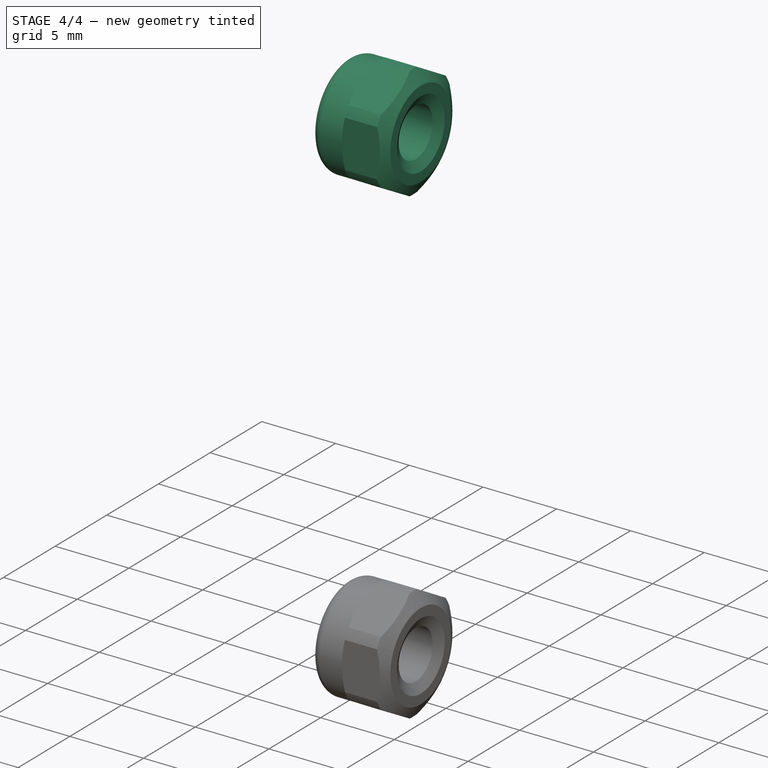
[diagram: stage 4 of 4 — iso view after this stage's code; geometry added in this stage tinted green]
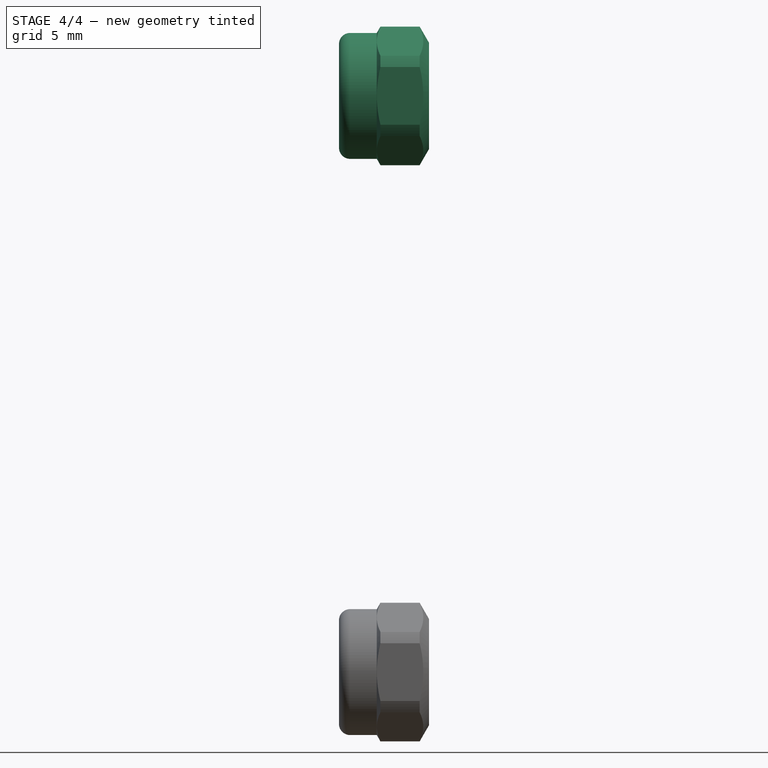
[diagram: stage 4 of 4 — front view after this stage's code; geometry added in this stage tinted green]
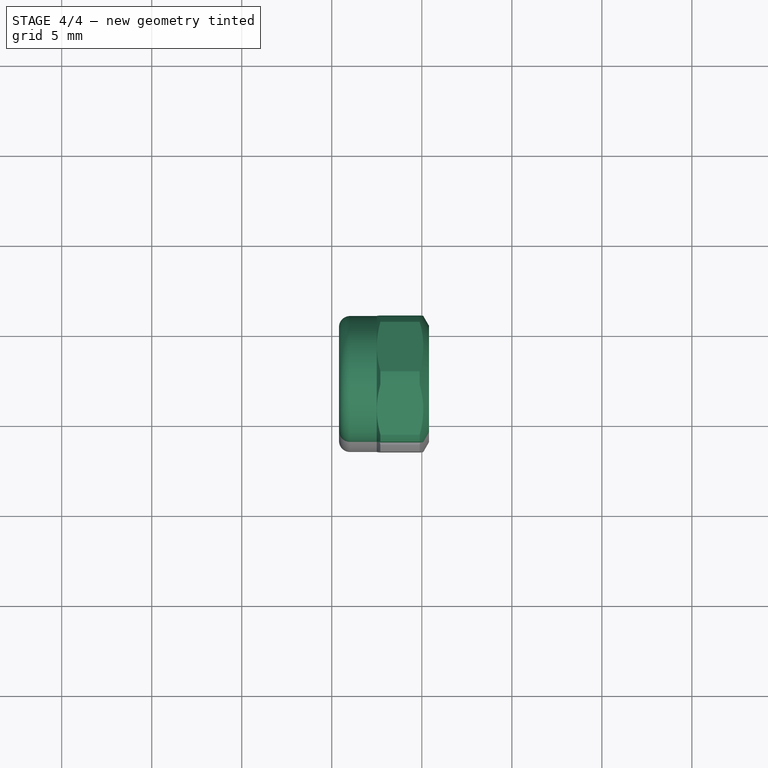
[diagram: stage 4 of 4 — top view after this stage's code; geometry added in this stage tinted green]
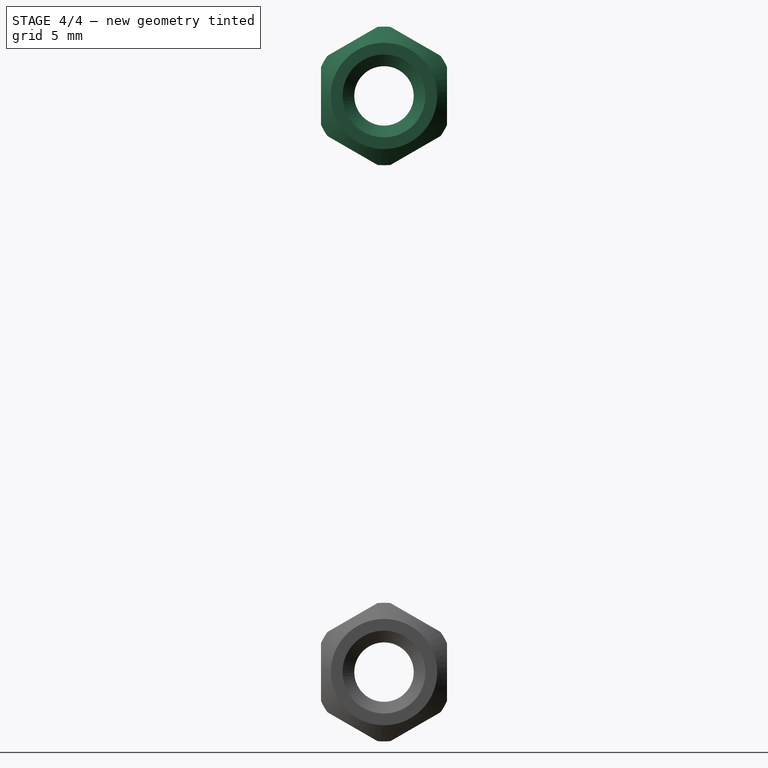
[diagram: stage 4 of 4 — right view after this stage's code; geometry added in this stage tinted green]
FEATURE [PartDesign::Body] Body
  Group = -> [Sketch,Pad,Sketch001,Pocket,Sketch002,Pocket001,Sketch003,Pocket002,Sketch004,Pocket003]
  Origin = -> Origin001
  Tip = -> Pocket003
FEATURE [App::Link] BreakawayMagnetTop
  AttachedBy = #LCS_Origin
  AttachedTo = Parent Assembly#LCS_Origin
  AttachmentOffset = pos=(0,-1.5,10) rot=(1,0,0;4.71239rad)
  LinkPlacement = pos=(0,-1.5,10) rot=(1,0,0;4.71239rad)
  LinkedObject = -> <external BreakawayMagnet.FCStd>#Assembly
  Placement = pos=(0,-1.5,10) rot=(1,0,0;4.71239rad)
  SolverId = Asm4EE
  expr: .AttachmentOffset.Base.y = <<MagnetHoles>>.Length * -1
  expr: Placement = LCS_Origin.Placement * AttachmentOffset * BreakawayMagnet#LCS_Origin.Placement ^ -1
FEATURE [App::Link] BreakawayMagnetTop001  label="BreakawayMagnetBottom"
  AttachedBy = #LCS_Origin
  AttachedTo = Parent Assembly#LCS_Origin
  AttachmentOffset = pos=(0,-1.5,-10) rot=(1,0,0;4.71239rad)
  LinkPlacement = pos=(0,-1.5,-10) rot=(1,0,0;4.71239rad)
  LinkedObject = -> <external BreakawayMagnet.FCStd>#Assembly
  Placement = pos=(0,-1.5,-10) rot=(1,0,0;4.71239rad)
  SolverId = Asm4EE
  expr: .AttachmentOffset.Base.y = <<MagnetHoles>>.Length * -1
  expr: Placement = LCS_Origin.Placement * AttachmentOffset * BreakawayMagnet#LCS_Origin.Placement ^ -1
FEATURE [PartDesign::CoordinateSystem] LCS_TrussHoles
  AttacherType = Attacher::AttachEngine3D
  AttachmentOffset = pos=(0,-18,0) rot=(0,0,1;0rad)
  MapMode = 2
  Placement = pos=(0,-18,0) rot=(0,0,1;0rad)
  Support = -> [LCS_Origin]
  expr: .AttachmentOffset.Base.y = <<Sketch002>>.Constraints.HolesOffset * -1
FEATURE [Part::FeaturePython] Screw  label="M4x25-Screw"  # Fasteners workbench fastener (typed FeaturePython)
  Placement = pos=(10,-18,-16) rot=(0,1,0;1.5708rad)
  baseObject = -> Body [Edge93]
  diameter = 5
  invert = false
  leftHanded = false
  length = 7
  lengthCustom = 25
  matchOuter = false
  offset = 2
  thread = false
  type = 45
FEATURE [Part::FeaturePython] Screw001  label="M4x25-Screw001"  # Fasteners workbench fastener (typed FeaturePython)
  Placement = pos=(10,-18,16) rot=(0,1,0;1.5708rad)
  baseObject = -> Body [Edge89]
  diameter = 5
  invert = false
  leftHanded = false
  length = 7
  lengthCustom = 25
  matchOuter = false
  offset = 2
  thread = false
  type = 45
FEATURE [Part::FeaturePython] Nut  label="M4-Nut"  # Fasteners workbench fastener (typed FeaturePython)
  Placement = pos=(-9.6,-18,16) rot=(0,-1,0;1.5708rad)
  baseObject = -> Screw001 [Edge35]
  diameter = 2
  invert = true
  leftHanded = false
  matchOuter = true
  offset = -5
  thread = false
  type = 19
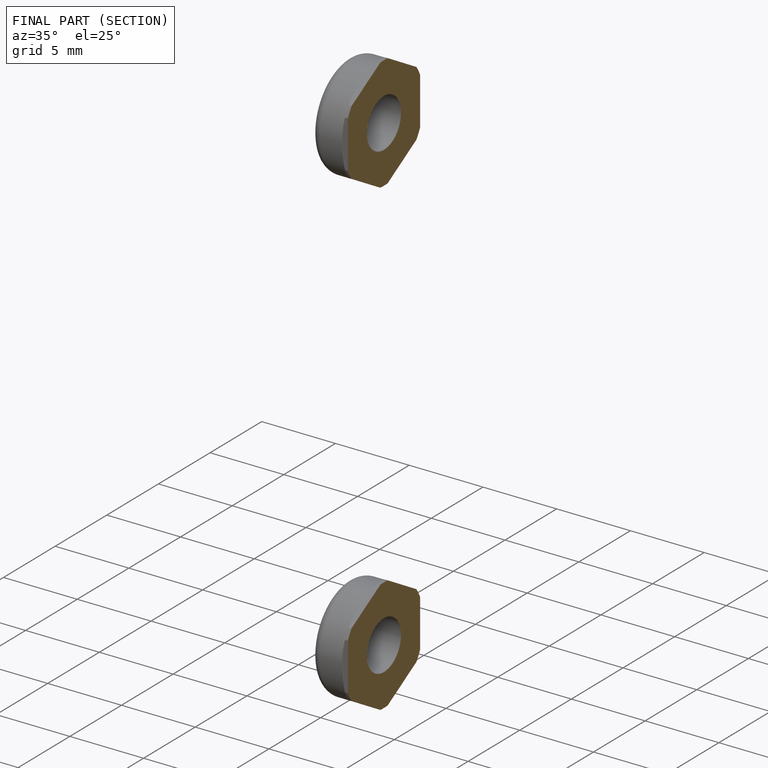
[diagram: finished part — half-section view (interior)]
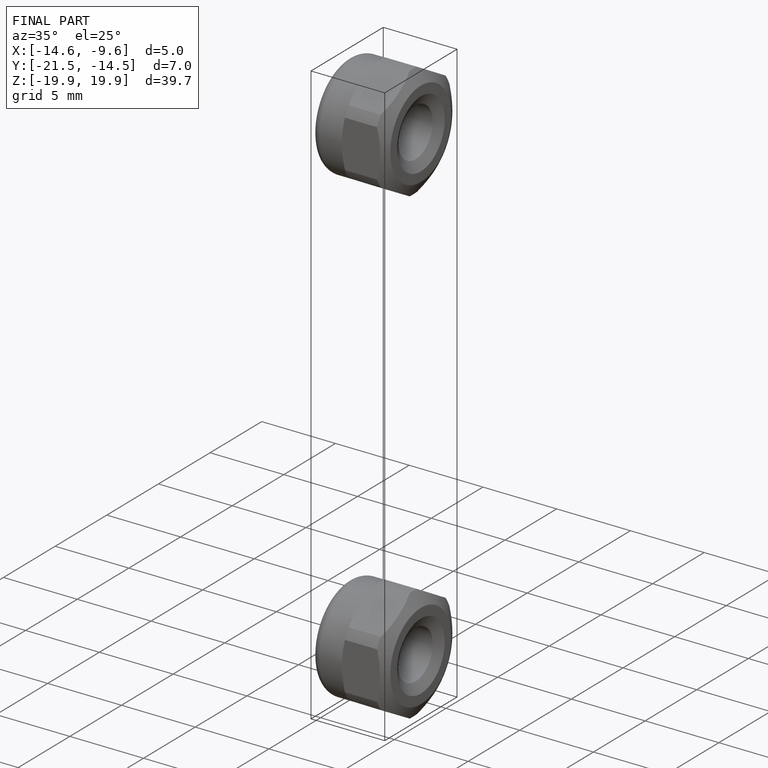
[diagram: finished part — iso view with bounding-box wireframe]
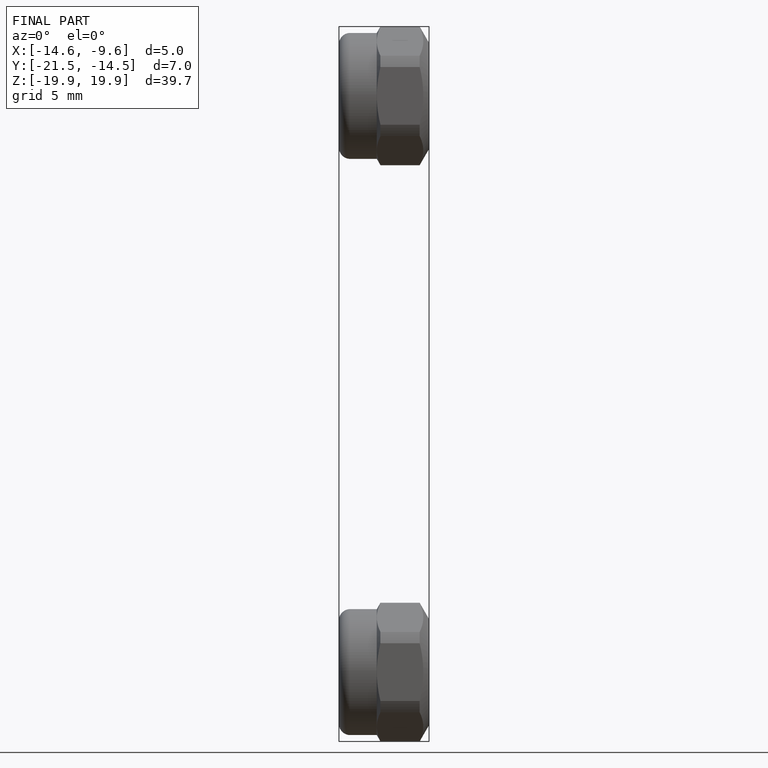
[diagram: finished part — front view with bounding-box wireframe]
